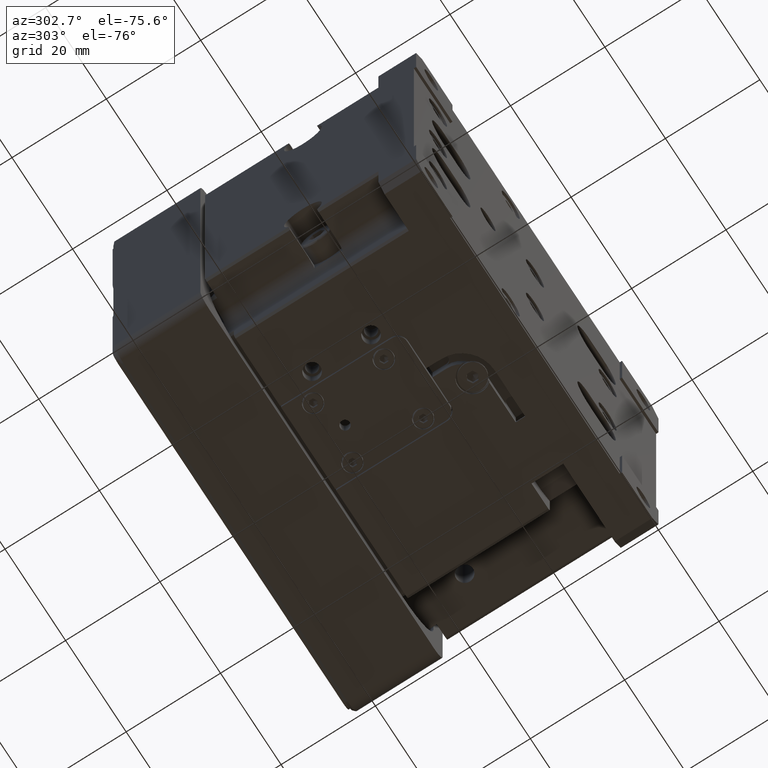
[diagram: clean part render]
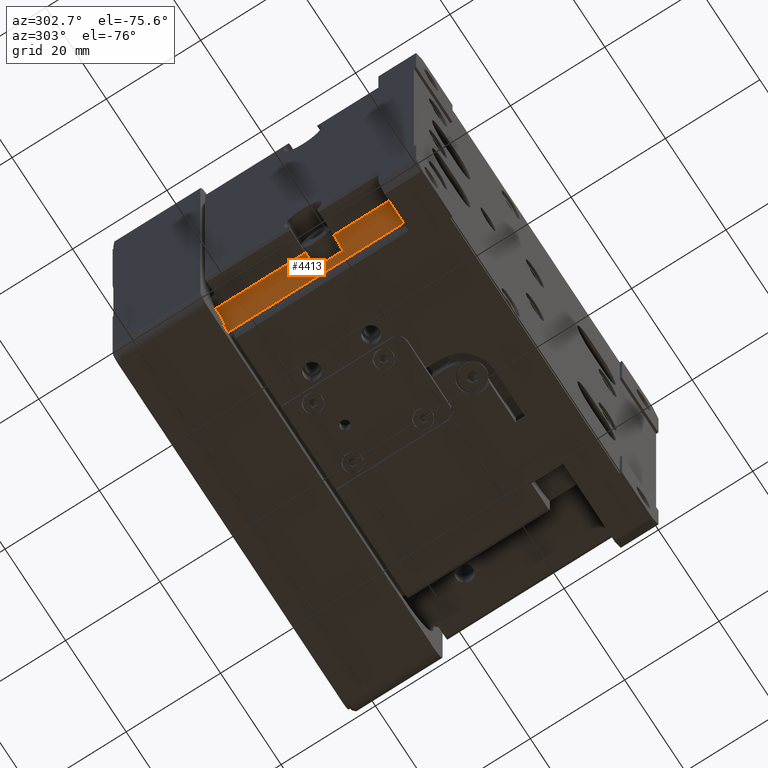
[diagram: same view with one face highlighted and labeled with its STEP entity id]
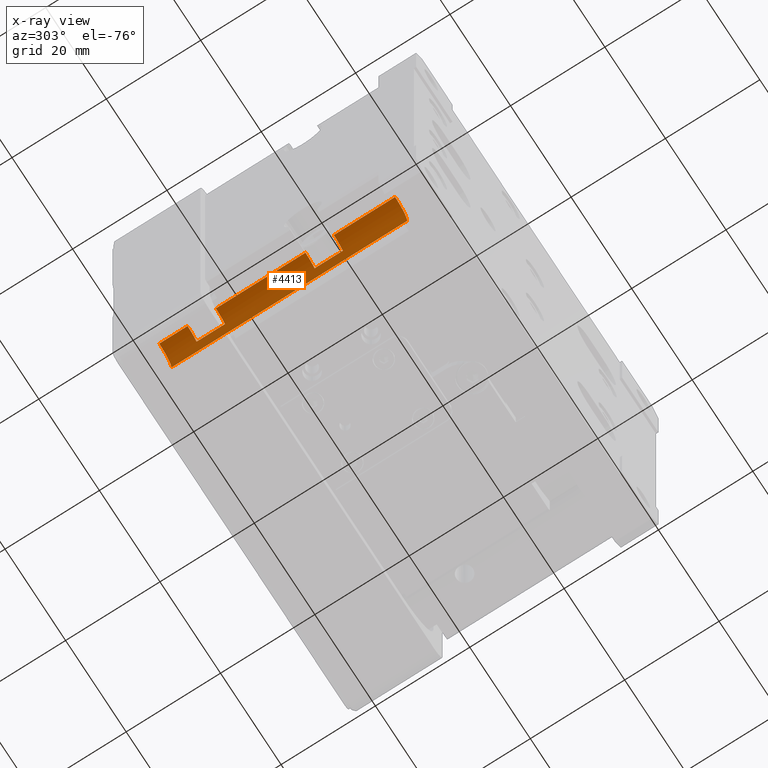
[diagram: x-ray of the same camera — body ghosted, the highlighted face saturated]
A machine part, auxiliary view. The second image highlights one B-rep face of the part: STEP entity #4413.
The next image is the same camera in x-ray: the body ghosted, the highlighted face saturated — about 0% of this face is hidden behind the body in this view.
In plain terms, the highlighted cylindrical surface (edge-blend (fillet) strip) has radius 4 mm, axis along (0, -1, 0).
Its self-contained STEP definition (entity closure, byte-faithful):
#169 = AXIS2_PLACEMENT_3D ( 'NONE', #8717, #11360, #34629 ) ;
#751 = DIRECTION ( 'NONE',  ( 0.000000000000000000, -1.000000000000000000, 0.000000000000000000 ) ) ;
#1244 = CIRCLE ( 'NONE', #12639, 4.000000000000003553 ) ;
#1491 = VERTEX_POINT ( 'NONE', #26477 ) ;
#2111 = EDGE_CURVE ( 'NONE', #14159, #2561, #15728, .T. ) ;
#2561 = VERTEX_POINT ( 'NONE', #8683 ) ;
#3273 = AXIS2_PLACEMENT_3D ( 'NONE', #34810, #14365, #22998 ) ;
#3556 = CIRCLE ( 'NONE', #34151, 4.000000000000003553 ) ;
#4093 = DIRECTION ( 'NONE',  ( 0.000000000000000000, 0.000000000000000000, -1.000000000000000000 ) ) ;
#4413 = ADVANCED_FACE ( 'NONE', ( #20642 ), #20829, .F. ) ;
#5202 = DIRECTION ( 'NONE',  ( 0.000000000000000000, -1.000000000000000000, 0.000000000000000000 ) ) ;
#5929 = CARTESIAN_POINT ( 'NONE',  ( -30.50000000000000711, 8.000000000000000000, -34.49999999999998579 ) ) ;
#6012 = EDGE_CURVE ( 'NONE', #29260, #26297, #25913, .T. ) ;
#6916 = CARTESIAN_POINT ( 'NONE',  ( -34.50000000000000711, 52.00000000000002132, -34.49999999999998579 ) ) ;
#7050 = EDGE_CURVE ( 'NONE', #8060, #8513, #10370, .T. ) ;
#7379 = CARTESIAN_POINT ( 'NONE',  ( -34.50000000000000711, 8.000000000000000000, -34.49999999999998579 ) ) ;
#7472 = LINE ( 'NONE', #30945, #29068 ) ;
#8060 = VERTEX_POINT ( 'NONE', #29461 ) ;
#8077 = CARTESIAN_POINT ( 'NONE',  ( -30.50000000000000711, 8.000000000000000000, -34.49999999999998579 ) ) ;
#8494 = CARTESIAN_POINT ( 'NONE',  ( -34.50000000000000711, 21.00000000000000355, -34.49999999999998579 ) ) ;
#8513 = VERTEX_POINT ( 'NONE', #20724 ) ;
#8541 = LINE ( 'NONE', #19987, #34516 ) ;
#8683 = CARTESIAN_POINT ( 'NONE',  ( -31.50000000000000000, 21.00000000000000355, -31.85424868893539596 ) ) ;
#8717 = CARTESIAN_POINT ( 'NONE',  ( -34.50000000000000711, 46.00000000000000711, -34.49999999999998579 ) ) ;
#10370 = CIRCLE ( 'NONE', #169, 4.000000000000003553 ) ;
#10543 = VERTEX_POINT ( 'NONE', #18145 ) ;
#10593 = DIRECTION ( 'NONE',  ( 0.000000000000000000, -1.000000000000000000, 0.000000000000000000 ) ) ;
#11164 = ORIENTED_EDGE ( 'NONE', *, *, #25947, .F. ) ;
#11360 = DIRECTION ( 'NONE',  ( 0.000000000000000000, -1.000000000000000000, 0.000000000000000000 ) ) ;
#11374 = CARTESIAN_POINT ( 'NONE',  ( -31.50000000000000711, 8.000000000000000000, -31.85424868893539596 ) ) ;
#12029 = DIRECTION ( 'NONE',  ( 0.000000000000000000, 0.000000000000000000, -1.000000000000000000 ) ) ;
#12592 = ORIENTED_EDGE ( 'NONE', *, *, #34135, .F. ) ;
#12639 = AXIS2_PLACEMENT_3D ( 'NONE', #6916, #29835, #4093 ) ;
#12911 = VERTEX_POINT ( 'NONE', #15232 ) ;
#12972 = ORIENTED_EDGE ( 'NONE', *, *, #35822, .F. ) ;
#12999 = ORIENTED_EDGE ( 'NONE', *, *, #7050, .F. ) ;
#13197 = DIRECTION ( 'NONE',  ( 0.000000000000000000, 0.000000000000000000, -1.000000000000000000 ) ) ;
#13227 = LINE ( 'NONE', #29946, #22680 ) ;
#13461 = ORIENTED_EDGE ( 'NONE', *, *, #22376, .F. ) ;
#13948 = DIRECTION ( 'NONE',  ( 0.000000000000000000, 0.000000000000000000, -1.000000000000000000 ) ) ;
#14125 = EDGE_CURVE ( 'NONE', #12911, #23868, #36877, .T. ) ;
#14159 = VERTEX_POINT ( 'NONE', #22809 ) ;
#14365 = DIRECTION ( 'NONE',  ( 0.000000000000000000, -1.000000000000000000, 0.000000000000000000 ) ) ;
#14947 = ORIENTED_EDGE ( 'NONE', *, *, #18492, .F. ) ;
#15232 = CARTESIAN_POINT ( 'NONE',  ( -30.50000000000000711, 58.00000000000000000, -34.49999999999998579 ) ) ;
#15654 = DIRECTION ( 'NONE',  ( 0.000000000000000000, -1.000000000000000000, 0.000000000000000000 ) ) ;
#15728 = LINE ( 'NONE', #11374, #20549 ) ;
#16422 = CARTESIAN_POINT ( 'NONE',  ( -34.50000000000000711, 27.00000000000000711, -34.49999999999998579 ) ) ;
#16426 = ORIENTED_EDGE ( 'NONE', *, *, #6012, .T. ) ;
#18145 = CARTESIAN_POINT ( 'NONE',  ( -34.50000000000000711, 52.00000000000002132, -30.49999999999998579 ) ) ;
#18184 = ORIENTED_EDGE ( 'NONE', *, *, #23498, .F. ) ;
#18315 = ORIENTED_EDGE ( 'NONE', *, *, #2111, .F. ) ;
#18492 = EDGE_CURVE ( 'NONE', #8513, #25617, #27056, .T. ) ;
#19314 = ORIENTED_EDGE ( 'NONE', *, *, #22347, .F. ) ;
#19752 = CARTESIAN_POINT ( 'NONE',  ( -34.50000000000000711, 8.000000000000000000, -30.49999999999998579 ) ) ;
#19756 = DIRECTION ( 'NONE',  ( 0.000000000000000000, -1.000000000000000000, 0.000000000000000000 ) ) ;
#19987 = CARTESIAN_POINT ( 'NONE',  ( -34.50000000000000711, 8.000000000000000000, -30.49999999999998579 ) ) ;
#20549 = VECTOR ( 'NONE', #31294, 1000.000000000000000 ) ;
#20642 = FACE_OUTER_BOUND ( 'NONE', #23713, .T. ) ;
#20724 = CARTESIAN_POINT ( 'NONE',  ( -34.50000000000000711, 46.00000000000000711, -30.49999999999998934 ) ) ;
#20829 = CYLINDRICAL_SURFACE ( 'NONE', #22543, 4.000000000000003553 ) ;
#21203 = CARTESIAN_POINT ( 'NONE',  ( -34.50000000000000711, 8.000000000000000000, -30.49999999999998579 ) ) ;
#21601 = CARTESIAN_POINT ( 'NONE',  ( -31.50000000000000711, 52.00000000000002132, -31.85424868893539596 ) ) ;
#22347 = EDGE_CURVE ( 'NONE', #23868, #10543, #13227, .T. ) ;
#22376 = EDGE_CURVE ( 'NONE', #25617, #14159, #35240, .T. ) ;
#22543 = AXIS2_PLACEMENT_3D ( 'NONE', #26299, #751, #12029 ) ;
#22680 = VECTOR ( 'NONE', #10593, 1000.000000000000000 ) ;
#22809 = CARTESIAN_POINT ( 'NONE',  ( -31.50000000000000711, 27.00000000000000711, -31.85424868893539596 ) ) ;
#22998 = DIRECTION ( 'NONE',  ( 0.000000000000000000, 0.000000000000000000, -1.000000000000000000 ) ) ;
#23207 = ORIENTED_EDGE ( 'NONE', *, *, #14125, .F. ) ;
#23498 = EDGE_CURVE ( 'NONE', #29260, #12911, #31306, .T. ) ;
#23713 = EDGE_LOOP ( 'NONE', ( #14947, #12999, #12592, #12972, #19314, #23207, #18184, #16426, #11164, #32527, #18315, #13461 ) ) ;
#23868 = VERTEX_POINT ( 'NONE', #30694 ) ;
#25269 = DIRECTION ( 'NONE',  ( 0.000000000000000000, -1.000000000000000000, 0.000000000000000000 ) ) ;
#25617 = VERTEX_POINT ( 'NONE', #29786 ) ;
#25675 = AXIS2_PLACEMENT_3D ( 'NONE', #16422, #35761, #27878 ) ;
#25913 = CIRCLE ( 'NONE', #26531, 4.000000000000003553 ) ;
#25947 = EDGE_CURVE ( 'NONE', #1491, #26297, #8541, .T. ) ;
#26297 = VERTEX_POINT ( 'NONE', #19752 ) ;
#26299 = CARTESIAN_POINT ( 'NONE',  ( -34.50000000000000711, 8.000000000000000000, -34.49999999999998579 ) ) ;
#26477 = CARTESIAN_POINT ( 'NONE',  ( -34.50000000000000711, 21.00000000000000355, -30.49999999999998934 ) ) ;
#26531 = AXIS2_PLACEMENT_3D ( 'NONE', #7379, #15654, #13197 ) ;
#27056 = LINE ( 'NONE', #21203, #27262 ) ;
#27262 = VECTOR ( 'NONE', #29671, 1000.000000000000000 ) ;
#27846 = VERTEX_POINT ( 'NONE', #21601 ) ;
#27878 = DIRECTION ( 'NONE',  ( 0.000000000000000000, 0.000000000000000000, -1.000000000000000000 ) ) ;
#29068 = VECTOR ( 'NONE', #5202, 1000.000000000000000 ) ;
#29260 = VERTEX_POINT ( 'NONE', #8077 ) ;
#29461 = CARTESIAN_POINT ( 'NONE',  ( -31.50000000000000000, 46.00000000000000711, -31.85424868893539596 ) ) ;
#29671 = DIRECTION ( 'NONE',  ( 0.000000000000000000, -1.000000000000000000, 0.000000000000000000 ) ) ;
#29786 = CARTESIAN_POINT ( 'NONE',  ( -34.50000000000000711, 27.00000000000000711, -30.49999999999998579 ) ) ;
#29835 = DIRECTION ( 'NONE',  ( -0.000000000000000000, 1.000000000000000000, -0.000000000000000000 ) ) ;
#29946 = CARTESIAN_POINT ( 'NONE',  ( -34.50000000000000711, 8.000000000000000000, -30.49999999999998579 ) ) ;
#30694 = CARTESIAN_POINT ( 'NONE',  ( -34.50000000000000711, 58.00000000000000000, -30.49999999999998934 ) ) ;
#30945 = CARTESIAN_POINT ( 'NONE',  ( -31.50000000000000711, 8.000000000000000000, -31.85424868893539596 ) ) ;
#30994 = VECTOR ( 'NONE', #37121, 1000.000000000000000 ) ;
#31294 = DIRECTION ( 'NONE',  ( 0.000000000000000000, -1.000000000000000000, 0.000000000000000000 ) ) ;
#31306 = LINE ( 'NONE', #5929, #30994 ) ;
#32527 = ORIENTED_EDGE ( 'NONE', *, *, #35013, .F. ) ;
#34135 = EDGE_CURVE ( 'NONE', #27846, #8060, #7472, .T. ) ;
#34151 = AXIS2_PLACEMENT_3D ( 'NONE', #8494, #19756, #13948 ) ;
#34516 = VECTOR ( 'NONE', #25269, 1000.000000000000000 ) ;
#34629 = DIRECTION ( 'NONE',  ( 0.000000000000000000, 0.000000000000000000, -1.000000000000000000 ) ) ;
#34810 = CARTESIAN_POINT ( 'NONE',  ( -34.50000000000000711, 58.00000000000000000, -34.49999999999998579 ) ) ;
#35013 = EDGE_CURVE ( 'NONE', #2561, #1491, #3556, .T. ) ;
#35240 = CIRCLE ( 'NONE', #25675, 4.000000000000003553 ) ;
#35761 = DIRECTION ( 'NONE',  ( -0.000000000000000000, 1.000000000000000000, -0.000000000000000000 ) ) ;
#35822 = EDGE_CURVE ( 'NONE', #10543, #27846, #1244, .T. ) ;
#36877 = CIRCLE ( 'NONE', #3273, 4.000000000000003553 ) ;
#37121 = DIRECTION ( 'NONE',  ( -0.000000000000000000, 1.000000000000000000, -0.000000000000000000 ) ) ;